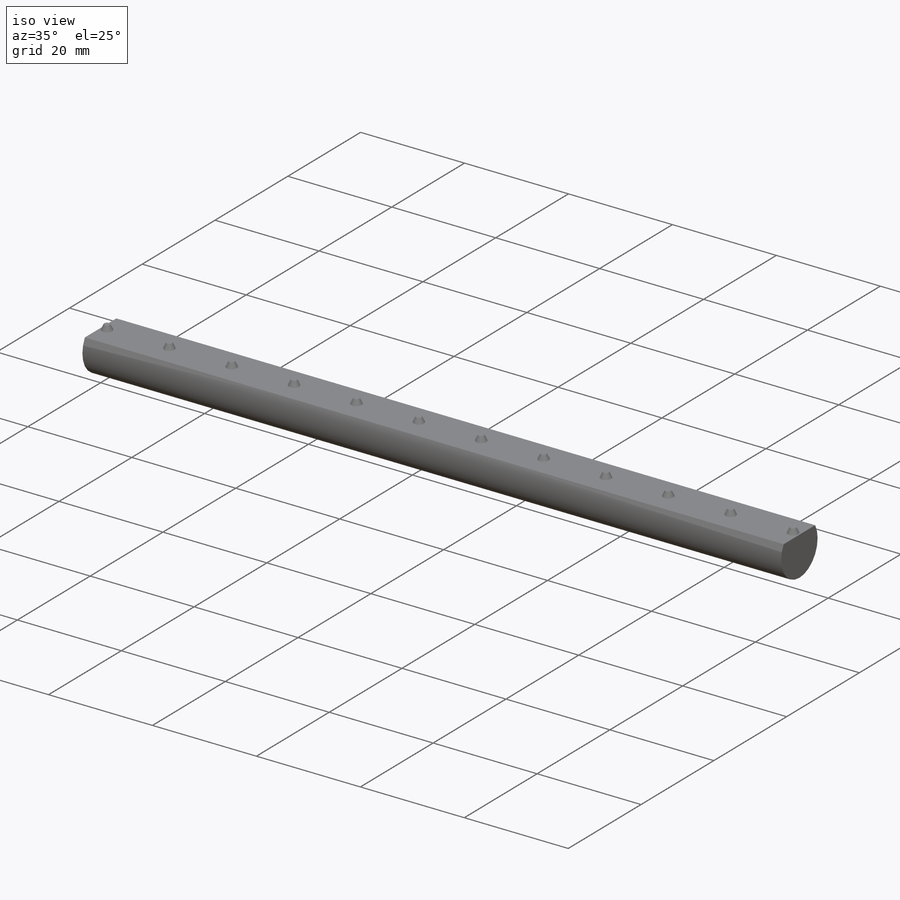
[diagram: iso view]
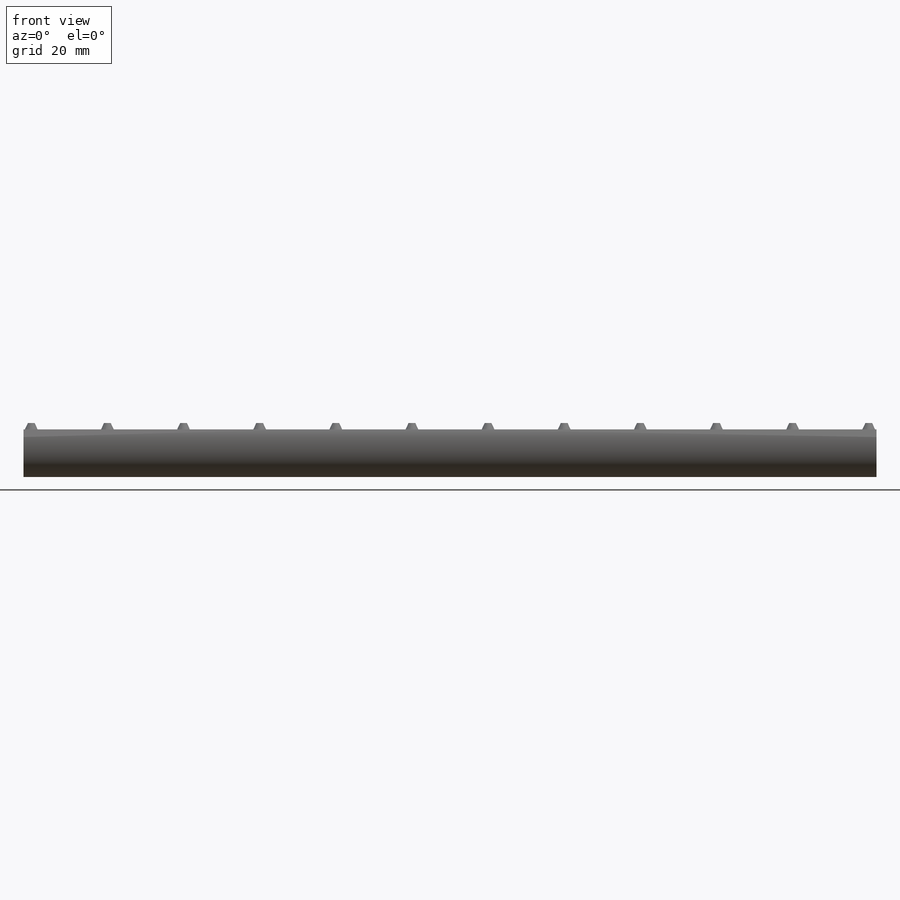
[diagram: front view]
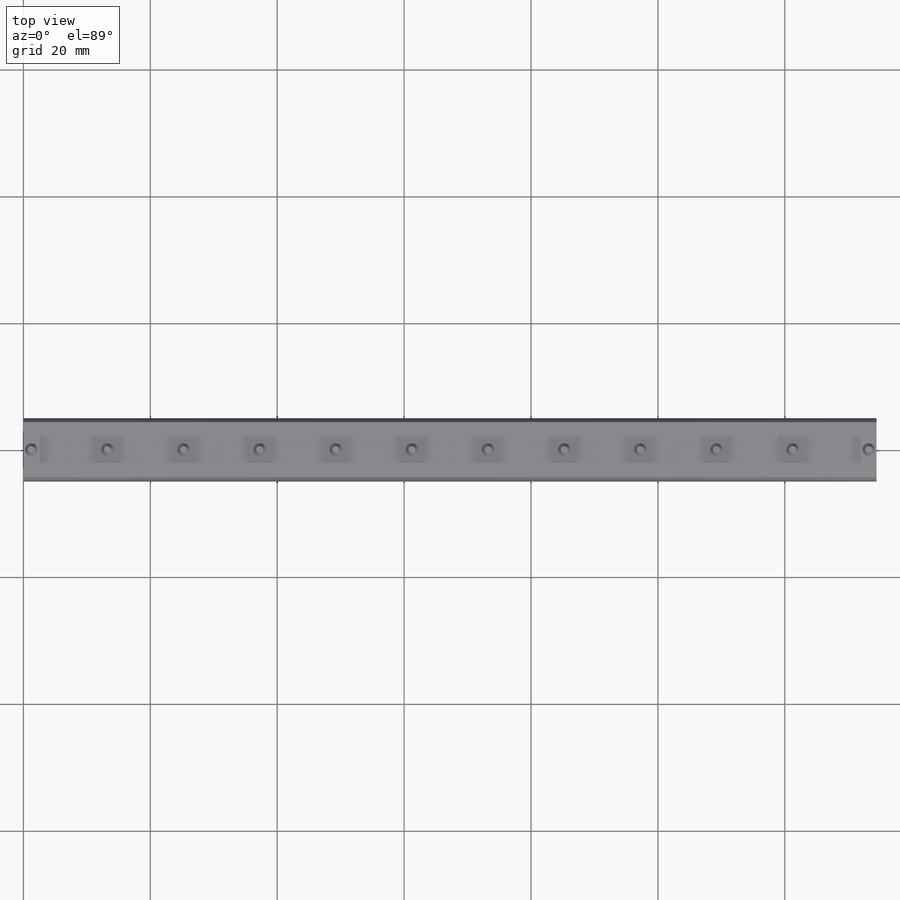
[diagram: top view]
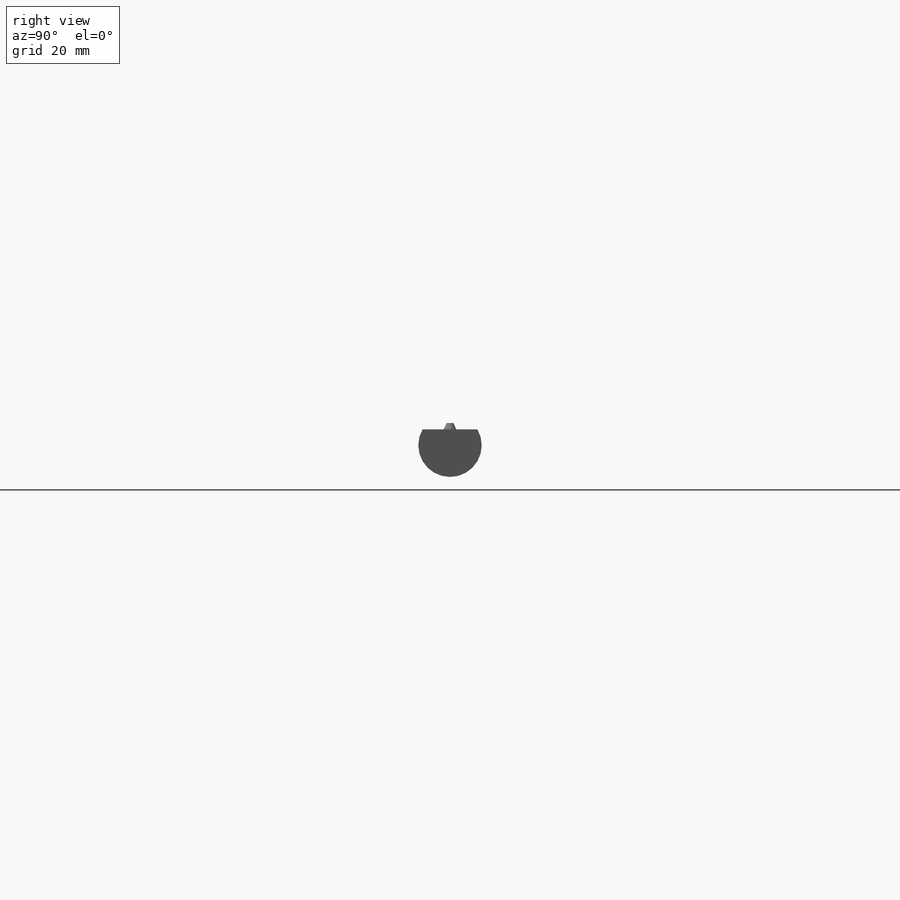
[diagram: right view]
SOLIDWORKS PART (.sldprt)
format: sldprt  version: not decoded by parser v0  size: 162,816 bytes
history: native  units: mm
features: plane x7, sketch x2, extrude x2, material x1, pattern_linear x1 (+10 scaffold rows collapsed)
feature tree (23):
  scaffold x10  (default folders/planes/origin — collapsed)
  material  "Material <nicht angegeben>"
  plane  "Ebene vorne"
  plane  "Ebene oben"
  plane  "Ebene rechts"
  sketch  "Skizze1"  dims[D1=10.0mm D2=2.5mm]
  extrude  "Aufsatz-Linear austragen1"  Depth=134.46mm
  plane  "Ebene1"
  plane  "Ebene2"
  plane  "Ebene3"
  plane  "Ebene4"
  sketch  "Skizze3"  dims[c1.D1=5.0mm c1.D2=2.0mm c2.D1=1.229mm]
  extrude  "Aufsatz-Linear austragen2"  Depth=1mm
  pattern_linear  "Lineares Muster2"  Count1=12 Count2=1 Spacing1=12mm Spacing2=50mm
decode coverage: 5 of 5 modeling features carry decoded parameters
note: suppression state not decoded; provenance and decode notes live in map.json
